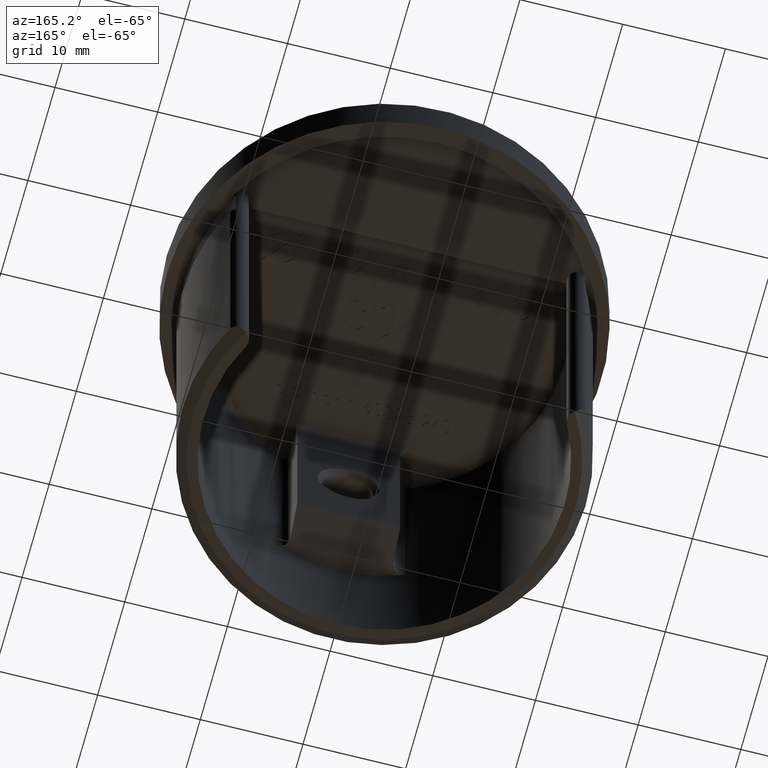
[diagram: clean part render]
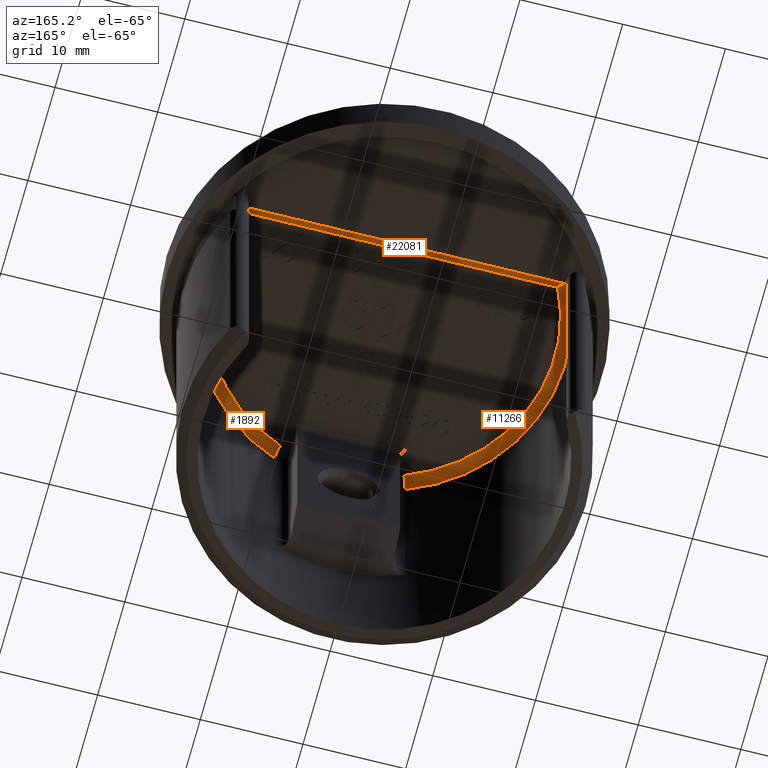
[diagram: same view with one multi-face feature highlighted, each face labeled with its STEP entity id]
A machine part, auxiliary view. The highlighted faces form ONE feature: a constant-radius fillet chain: 3 tangent blend faces with common blend radius 1 mm. The faces share edges in the B-rep.
Their STEP definitions:
[1] entity #22081 (Cylinder):
#217 = ORIENTED_EDGE ( 'NONE', *, *, #7104, .T. ) ;
#1024 = CARTESIAN_POINT ( 'NONE',  ( 15.59207656721033300, 8.082403439311900000, 1.280653125799780200 ) ) ;
#1078 = DIRECTION ( 'NONE',  ( -1.000000000000000000, 0.0000000000000000000, 0.0000000000000000000 ) ) ;
#1366 = VERTEX_POINT ( 'NONE', #21940 ) ;
#1510 = VECTOR ( 'NONE', #1078, 1000.000000000000000 ) ;
#2337 = CARTESIAN_POINT ( 'NONE',  ( 0.0000000000000000000, 7.120000000000001900, 2.000000000000000000 ) ) ;
#3184 = CARTESIAN_POINT ( 'NONE',  ( -15.59207647108406300, 8.082403281173126800, 1.280653705905780800 ) ) ;
#3281 = CARTESIAN_POINT ( 'NONE',  ( 15.29983064122023300, 7.605513222634474600, 1.912203235825041600 ) ) ;
#3361 = CARTESIAN_POINT ( 'NONE',  ( 15.57837762386286700, 8.059870797539284500, 1.348432885515038700 ) ) ;
#3916 = EDGE_LOOP ( 'NONE', ( #20155, #5581, #23730, #217 ) ) ;
#4331 = CARTESIAN_POINT ( 'NONE',  ( -14.99551933078677900, 7.120000000000001900, 2.000000000000000000 ) ) ;
#5046 = CARTESIAN_POINT ( 'NONE',  ( 15.61491711629740900, 8.120000000000002800, 1.000000000000000000 ) ) ;
#5113 = CARTESIAN_POINT ( 'NONE',  ( -15.61491711629741300, 8.120000000000004500, 1.072107598190528600 ) ) ;
#5135 = CARTESIAN_POINT ( 'NONE',  ( 14.99551933078677900, 7.120000000000001900, 2.000000000000000000 ) ) ;
#5581 = ORIENTED_EDGE ( 'NONE', *, *, #23579, .T. ) ;
#6080 = EDGE_CURVE ( 'NONE', #1366, #6849, #18207, .T. ) ;
#6590 = LINE ( 'NONE', #2337, #20392 ) ;
#6849 = VERTEX_POINT ( 'NONE', #17449 ) ;
#7052 = CARTESIAN_POINT ( 'NONE',  ( -15.47659444961398900, 7.892990717075751800, 1.647645641863663100 ) ) ;
#7104 = EDGE_CURVE ( 'NONE', #1366, #20313, #21992, .T. ) ;
#7887 = DIRECTION ( 'NONE',  ( 1.000000000000000000, -0.0000000000000000000, 0.0000000000000000000 ) ) ;
#8755 = CARTESIAN_POINT ( 'NONE',  ( -15.29982946836678400, 7.605511324516868400, 1.912204394972408600 ) ) ;
#8853 = CARTESIAN_POINT ( 'NONE',  ( 15.14727939926857500, 7.360083421147961300, 2.000000000000000900 ) ) ;
#9063 = CARTESIAN_POINT ( 'NONE',  ( -15.14719719005901800, 7.359953366724045800, 2.000000000000000000 ) ) ;
#10103 = CARTESIAN_POINT ( 'NONE',  ( 15.61491711629740900, 8.120000000000002800, 1.000000000000000000 ) ) ;
#10747 = CARTESIAN_POINT ( 'NONE',  ( -15.52649631686719400, 7.974709471884300300, 1.537142589483914600 ) ) ;
#10847 = CARTESIAN_POINT ( 'NONE',  ( 15.61023898915715500, 8.112293187247161100, 1.142621132948190800 ) ) ;
#12506 = CARTESIAN_POINT ( 'NONE',  ( -15.61491711629740900, 8.120000000000002800, 1.000000000000000000 ) ) ;
#13594 = FACE_OUTER_BOUND ( 'NONE', #3916, .T. ) ;
#13906 = CARTESIAN_POINT ( 'NONE',  ( 15.52649667393336200, 7.974710057191403600, 1.537141587700111600 ) ) ;
#14156 = EDGE_CURVE ( 'NONE', #21284, #20313, #6590, .T. ) ;
#14511 = CARTESIAN_POINT ( 'NONE',  ( -15.57837747170429100, 8.059870547374211800, 1.348433587459995300 ) ) ;
#17131 = DIRECTION ( 'NONE',  ( 0.0000000000000000000, 0.0000000000000000000, -1.000000000000000000 ) ) ;
#17234 = DIRECTION ( 'NONE',  ( 1.000000000000000000, -0.0000000000000000000, 0.0000000000000000000 ) ) ;
#17449 = CARTESIAN_POINT ( 'NONE',  ( -15.61491711629740900, 8.120000000000002800, 1.000000000000000000 ) ) ;
#18094 = B_SPLINE_CURVE_WITH_KNOTS ( 'NONE', 3,
 ( #19909, #9063, #8755, #7052, #10747, #14511, #3184, #21594, #5113, #12506 ),
 .UNSPECIFIED., .F., .F.,
 ( 4, 2, 2, 2, 4 ),
 ( -6.654332719826122800E-006, 0.0008449617908909346400, 0.001270769852696315000, 0.001483673883599005200, 0.001696577914501695400 ),
 .UNSPECIFIED. ) ;
#18207 = LINE ( 'NONE', #10103, #1510 ) ;
#18774 = CYLINDRICAL_SURFACE ( 'NONE', #20351, 1.000000000000000000 ) ;
#18907 = CARTESIAN_POINT ( 'NONE',  ( 0.0000000000000000000, 7.120000000000001900, 1.000000000000000000 ) ) ;
#19909 = CARTESIAN_POINT ( 'NONE',  ( -14.99551933078677900, 7.120000000000001900, 2.000000000000000000 ) ) ;
#20155 = ORIENTED_EDGE ( 'NONE', *, *, #14156, .F. ) ;
#20313 = VERTEX_POINT ( 'NONE', #22647 ) ;
#20351 = AXIS2_PLACEMENT_3D ( 'NONE', #18907, #7887, #17131 ) ;
#20392 = VECTOR ( 'NONE', #17234, 1000.000000000000000 ) ;
#21284 = VERTEX_POINT ( 'NONE', #4331 ) ;
#21594 = CARTESIAN_POINT ( 'NONE',  ( -15.61023896951527200, 8.112293154867229500, 1.142621432663860400 ) ) ;
#21608 = CARTESIAN_POINT ( 'NONE',  ( 15.47659498989145600, 7.892991600417474300, 1.647644535130719600 ) ) ;
#21940 = CARTESIAN_POINT ( 'NONE',  ( 15.61491711629740900, 8.120000000000002800, 1.000000000000000000 ) ) ;
#21992 = B_SPLINE_CURVE_WITH_KNOTS ( 'NONE', 3,
 ( #5046, #23072, #10847, #1024, #3361, #13906, #21608, #3281, #8853, #5135 ),
 .UNSPECIFIED., .F., .F.,
 ( 4, 2, 2, 2, 4 ),
 ( 0.0000000000000000000, 0.0002130194246205040400, 0.0004260388492410080900, 0.0008520776984820140000, 0.001704155396964024300 ),
 .UNSPECIFIED. ) ;
#22081 = ADVANCED_FACE ( 'NONE', ( #13594 ), #18774, .F. ) ;
#22647 = CARTESIAN_POINT ( 'NONE',  ( 14.99551933078677900, 7.120000000000001900, 2.000000000000000000 ) ) ;
#23072 = CARTESIAN_POINT ( 'NONE',  ( 15.61491711629740900, 8.120000000000004500, 1.072107444985236100 ) ) ;
#23579 = EDGE_CURVE ( 'NONE', #21284, #6849, #18094, .T. ) ;
#23730 = ORIENTED_EDGE ( 'NONE', *, *, #6080, .F. ) ;
[2] entity #11266 (Torus):
#281 = DIRECTION ( 'NONE',  ( -1.000000000000000000, 0.0000000000000000000, 0.0000000000000000000 ) ) ;
#433 = CARTESIAN_POINT ( 'NONE',  ( 0.0000000000000000000, 0.0000000000000000000, 2.000000000000000000 ) ) ;
#526 = CARTESIAN_POINT ( 'NONE',  ( -5.999999999999998200, -15.47772593115668200, 2.000000000000000000 ) ) ;
#646 = CIRCLE ( 'NONE', #7582, 16.60000000000000100 ) ;
#1831 = CARTESIAN_POINT ( 'NONE',  ( -15.61557046979866000, 8.118741214175512900, 1.000000000000000900 ) ) ;
#2671 = EDGE_CURVE ( 'NONE', #6849, #18271, #6669, .T. ) ;
#3184 = CARTESIAN_POINT ( 'NONE',  ( -15.59207647108406300, 8.082403281173126800, 1.280653705905780800 ) ) ;
#4115 = EDGE_CURVE ( 'NONE', #18271, #20037, #12734, .T. ) ;
#4331 = CARTESIAN_POINT ( 'NONE',  ( -14.99551933078677900, 7.120000000000001900, 2.000000000000000000 ) ) ;
#4405 = CARTESIAN_POINT ( 'NONE',  ( -6.361445783132529300, -16.41011905953961800, 1.000000000000000900 ) ) ;
#5113 = CARTESIAN_POINT ( 'NONE',  ( -15.61491711629741300, 8.120000000000004500, 1.072107598190528600 ) ) ;
#5904 = DIRECTION ( 'NONE',  ( -1.000000000000000000, 0.0000000000000000000, 0.0000000000000000000 ) ) ;
#6645 = EDGE_LOOP ( 'NONE', ( #17173, #8864, #21699, #15979, #21697 ) ) ;
#6669 = B_SPLINE_CURVE_WITH_KNOTS ( 'NONE', 3,
 ( #19320, #13861, #12558, #15634 ),
 .UNSPECIFIED., .F., .F.,
 ( 4, 4 ),
 ( 0.0000000000000000000, 1.000000000000000000 ),
 .UNSPECIFIED. ) ;
#6849 = VERTEX_POINT ( 'NONE', #17449 ) ;
#7052 = CARTESIAN_POINT ( 'NONE',  ( -15.47659444961398900, 7.892990717075751800, 1.647645641863663100 ) ) ;
#7582 = AXIS2_PLACEMENT_3D ( 'NONE', #433, #20777, #5904 ) ;
#7960 = DIRECTION ( 'NONE',  ( -0.0000000000000000000, -0.0000000000000000000, 1.000000000000000000 ) ) ;
#8340 = DIRECTION ( 'NONE',  ( -0.9323931283829327600, 0.3614457831325302900, 1.817136390298432100E-016 ) ) ;
#8755 = CARTESIAN_POINT ( 'NONE',  ( -15.29982946836678400, 7.605511324516868400, 1.912204394972408600 ) ) ;
#8864 = ORIENTED_EDGE ( 'NONE', *, *, #4115, .F. ) ;
#9063 = CARTESIAN_POINT ( 'NONE',  ( -15.14719719005901800, 7.359953366724045800, 2.000000000000000000 ) ) ;
#10747 = CARTESIAN_POINT ( 'NONE',  ( -15.52649631686719400, 7.974709471884300300, 1.537142589483914600 ) ) ;
#11266 = ADVANCED_FACE ( 'NONE', ( #19299 ), #19589, .F. ) ;
#11648 = DIRECTION ( 'NONE',  ( -1.000000000000000000, 0.0000000000000000000, 0.0000000000000000000 ) ) ;
#11841 = AXIS2_PLACEMENT_3D ( 'NONE', #19277, #8340, #21108 ) ;
#12506 = CARTESIAN_POINT ( 'NONE',  ( -15.61491711629740900, 8.120000000000002800, 1.000000000000000000 ) ) ;
#12558 = CARTESIAN_POINT ( 'NONE',  ( -15.61535268529824400, 8.119160809450342200, 1.000000000000000700 ) ) ;
#12734 = CIRCLE ( 'NONE', #23464, 17.60000000000000100 ) ;
#13494 = CARTESIAN_POINT ( 'NONE',  ( 0.0000000000000000000, 0.0000000000000000000, 1.000000000000000900 ) ) ;
#13861 = CARTESIAN_POINT ( 'NONE',  ( -15.61513490079782700, 8.119580404725173400, 1.000000000000000200 ) ) ;
#14511 = CARTESIAN_POINT ( 'NONE',  ( -15.57837747170429100, 8.059870547374211800, 1.348433587459995300 ) ) ;
#14996 = DIRECTION ( 'NONE',  ( 0.0000000000000000000, 0.0000000000000000000, -1.000000000000000000 ) ) ;
#15066 = EDGE_CURVE ( 'NONE', #20037, #20401, #21524, .T. ) ;
#15634 = CARTESIAN_POINT ( 'NONE',  ( -15.61557046979866000, 8.118741214175512900, 1.000000000000000900 ) ) ;
#15979 = ORIENTED_EDGE ( 'NONE', *, *, #23579, .F. ) ;
#17173 = ORIENTED_EDGE ( 'NONE', *, *, #15066, .F. ) ;
#17449 = CARTESIAN_POINT ( 'NONE',  ( -15.61491711629740900, 8.120000000000002800, 1.000000000000000000 ) ) ;
#18094 = B_SPLINE_CURVE_WITH_KNOTS ( 'NONE', 3,
 ( #19909, #9063, #8755, #7052, #10747, #14511, #3184, #21594, #5113, #12506 ),
 .UNSPECIFIED., .F., .F.,
 ( 4, 2, 2, 2, 4 ),
 ( -6.654332719826122800E-006, 0.0008449617908909346400, 0.001270769852696315000, 0.001483673883599005200, 0.001696577914501695400 ),
 .UNSPECIFIED. ) ;
#18271 = VERTEX_POINT ( 'NONE', #1831 ) ;
#18750 = AXIS2_PLACEMENT_3D ( 'NONE', #22555, #14996, #281 ) ;
#19277 = CARTESIAN_POINT ( 'NONE',  ( -5.999999999999999100, -15.47772593115668400, 1.000000000000000900 ) ) ;
#19299 = FACE_OUTER_BOUND ( 'NONE', #6645, .T. ) ;
#19320 = CARTESIAN_POINT ( 'NONE',  ( -15.61491711629740900, 8.120000000000002800, 1.000000000000000000 ) ) ;
#19589 = TOROIDAL_SURFACE ( 'NONE', #18750, 16.60000000000000100, 1.000000000000000000 ) ;
#19909 = CARTESIAN_POINT ( 'NONE',  ( -14.99551933078677900, 7.120000000000001900, 2.000000000000000000 ) ) ;
#20037 = VERTEX_POINT ( 'NONE', #4405 ) ;
#20401 = VERTEX_POINT ( 'NONE', #526 ) ;
#20777 = DIRECTION ( 'NONE',  ( 0.0000000000000000000, 0.0000000000000000000, -1.000000000000000000 ) ) ;
#21108 = DIRECTION ( 'NONE',  ( -0.3614457831325302900, -0.9323931283829326500, 0.0000000000000000000 ) ) ;
#21284 = VERTEX_POINT ( 'NONE', #4331 ) ;
#21524 = CIRCLE ( 'NONE', #11841, 1.000000000000000200 ) ;
#21594 = CARTESIAN_POINT ( 'NONE',  ( -15.61023896951527200, 8.112293154867229500, 1.142621432663860400 ) ) ;
#21672 = EDGE_CURVE ( 'NONE', #20401, #21284, #646, .T. ) ;
#21697 = ORIENTED_EDGE ( 'NONE', *, *, #21672, .F. ) ;
#21699 = ORIENTED_EDGE ( 'NONE', *, *, #2671, .F. ) ;
#22555 = CARTESIAN_POINT ( 'NONE',  ( 0.0000000000000000000, 0.0000000000000000000, 1.000000000000000900 ) ) ;
#23464 = AXIS2_PLACEMENT_3D ( 'NONE', #13494, #7960, #11648 ) ;
#23579 = EDGE_CURVE ( 'NONE', #21284, #6849, #18094, .T. ) ;
[3] entity #1892 (Torus):
#178 = ORIENTED_EDGE ( 'NONE', *, *, #10977, .F. ) ;
#997 = TOROIDAL_SURFACE ( 'NONE', #5561, 16.60000000000000100, 1.000000000000000000 ) ;
#1024 = CARTESIAN_POINT ( 'NONE',  ( 15.59207656721033300, 8.082403439311900000, 1.280653125799780200 ) ) ;
#1366 = VERTEX_POINT ( 'NONE', #21940 ) ;
#1866 = AXIS2_PLACEMENT_3D ( 'NONE', #9815, #15117, #22517 ) ;
#1892 = ADVANCED_FACE ( 'NONE', ( #23159 ), #997, .F. ) ;
#2049 = DIRECTION ( 'NONE',  ( 0.0000000000000000000, 0.0000000000000000000, -1.000000000000000000 ) ) ;
#2600 = CIRCLE ( 'NONE', #10437, 1.000000000000000200 ) ;
#2612 = VERTEX_POINT ( 'NONE', #17489 ) ;
#2881 = CARTESIAN_POINT ( 'NONE',  ( 5.999999999999998200, -15.47772593115668200, 1.000000000000000000 ) ) ;
#3281 = CARTESIAN_POINT ( 'NONE',  ( 15.29983064122023300, 7.605513222634474600, 1.912203235825041600 ) ) ;
#3361 = CARTESIAN_POINT ( 'NONE',  ( 15.57837762386286700, 8.059870797539284500, 1.348432885515038700 ) ) ;
#3709 = CARTESIAN_POINT ( 'NONE',  ( 5.999999999999998200, -15.47772593115668200, 2.000000000000000000 ) ) ;
#3871 = ORIENTED_EDGE ( 'NONE', *, *, #8876, .F. ) ;
#5046 = CARTESIAN_POINT ( 'NONE',  ( 15.61491711629740900, 8.120000000000002800, 1.000000000000000000 ) ) ;
#5135 = CARTESIAN_POINT ( 'NONE',  ( 14.99551933078677900, 7.120000000000001900, 2.000000000000000000 ) ) ;
#5338 = CARTESIAN_POINT ( 'NONE',  ( 6.361445783132529300, -16.41011905953961800, 1.000000000000000900 ) ) ;
#5561 = AXIS2_PLACEMENT_3D ( 'NONE', #20540, #2049, #20861 ) ;
#6299 = VERTEX_POINT ( 'NONE', #5338 ) ;
#6878 = CARTESIAN_POINT ( 'NONE',  ( 15.61535268529824400, 8.119160809450345800, 1.000000000000000200 ) ) ;
#7104 = EDGE_CURVE ( 'NONE', #1366, #20313, #21992, .T. ) ;
#8388 = EDGE_CURVE ( 'NONE', #6299, #2612, #10956, .T. ) ;
#8726 = ORIENTED_EDGE ( 'NONE', *, *, #7104, .F. ) ;
#8853 = CARTESIAN_POINT ( 'NONE',  ( 15.14727939926857500, 7.360083421147961300, 2.000000000000000900 ) ) ;
#8876 = EDGE_CURVE ( 'NONE', #2612, #1366, #13924, .T. ) ;
#9067 = DIRECTION ( 'NONE',  ( -0.0000000000000000000, -0.0000000000000000000, 1.000000000000000000 ) ) ;
#9290 = CARTESIAN_POINT ( 'NONE',  ( 15.61513490079782700, 8.119580404725173400, 0.9999999999999997800 ) ) ;
#9815 = CARTESIAN_POINT ( 'NONE',  ( 0.0000000000000000000, 0.0000000000000000000, 2.000000000000000000 ) ) ;
#10437 = AXIS2_PLACEMENT_3D ( 'NONE', #2881, #12201, #17691 ) ;
#10847 = CARTESIAN_POINT ( 'NONE',  ( 15.61023898915715500, 8.112293187247161100, 1.142621132948190800 ) ) ;
#10956 = CIRCLE ( 'NONE', #18570, 17.60000000000000100 ) ;
#10977 = EDGE_CURVE ( 'NONE', #16329, #6299, #2600, .T. ) ;
#12201 = DIRECTION ( 'NONE',  ( 0.9323931283829326500, 0.3614457831325304500, -0.0000000000000000000 ) ) ;
#12537 = ORIENTED_EDGE ( 'NONE', *, *, #8388, .F. ) ;
#12825 = DIRECTION ( 'NONE',  ( -1.000000000000000000, 0.0000000000000000000, 0.0000000000000000000 ) ) ;
#13906 = CARTESIAN_POINT ( 'NONE',  ( 15.52649667393336200, 7.974710057191403600, 1.537141587700111600 ) ) ;
#13924 = B_SPLINE_CURVE_WITH_KNOTS ( 'NONE', 3,
 ( #19975, #6878, #9290, #16529 ),
 .UNSPECIFIED., .F., .F.,
 ( 4, 4 ),
 ( 0.0000000000000000000, 1.000000000000000000 ),
 .UNSPECIFIED. ) ;
#15117 = DIRECTION ( 'NONE',  ( 0.0000000000000000000, 0.0000000000000000000, -1.000000000000000000 ) ) ;
#15592 = ORIENTED_EDGE ( 'NONE', *, *, #22053, .F. ) ;
#16329 = VERTEX_POINT ( 'NONE', #3709 ) ;
#16529 = CARTESIAN_POINT ( 'NONE',  ( 15.61491711629740900, 8.120000000000002800, 1.000000000000000000 ) ) ;
#17489 = CARTESIAN_POINT ( 'NONE',  ( 15.61557046979866000, 8.118741214175516400, 1.000000000000000400 ) ) ;
#17691 = DIRECTION ( 'NONE',  ( -0.3614457831325302900, 0.9323931283829326500, 0.0000000000000000000 ) ) ;
#18496 = CIRCLE ( 'NONE', #1866, 16.60000000000000100 ) ;
#18570 = AXIS2_PLACEMENT_3D ( 'NONE', #22144, #9067, #12825 ) ;
#19487 = EDGE_LOOP ( 'NONE', ( #3871, #12537, #178, #15592, #8726 ) ) ;
#19975 = CARTESIAN_POINT ( 'NONE',  ( 15.61557046979866000, 8.118741214175516400, 1.000000000000000400 ) ) ;
#20313 = VERTEX_POINT ( 'NONE', #22647 ) ;
#20540 = CARTESIAN_POINT ( 'NONE',  ( 0.0000000000000000000, 0.0000000000000000000, 1.000000000000000900 ) ) ;
#20861 = DIRECTION ( 'NONE',  ( -1.000000000000000000, 0.0000000000000000000, 0.0000000000000000000 ) ) ;
#21608 = CARTESIAN_POINT ( 'NONE',  ( 15.47659498989145600, 7.892991600417474300, 1.647644535130719600 ) ) ;
#21940 = CARTESIAN_POINT ( 'NONE',  ( 15.61491711629740900, 8.120000000000002800, 1.000000000000000000 ) ) ;
#21992 = B_SPLINE_CURVE_WITH_KNOTS ( 'NONE', 3,
 ( #5046, #23072, #10847, #1024, #3361, #13906, #21608, #3281, #8853, #5135 ),
 .UNSPECIFIED., .F., .F.,
 ( 4, 2, 2, 2, 4 ),
 ( 0.0000000000000000000, 0.0002130194246205040400, 0.0004260388492410080900, 0.0008520776984820140000, 0.001704155396964024300 ),
 .UNSPECIFIED. ) ;
#22053 = EDGE_CURVE ( 'NONE', #20313, #16329, #18496, .T. ) ;
#22144 = CARTESIAN_POINT ( 'NONE',  ( 0.0000000000000000000, 0.0000000000000000000, 1.000000000000000900 ) ) ;
#22517 = DIRECTION ( 'NONE',  ( -1.000000000000000000, 0.0000000000000000000, 0.0000000000000000000 ) ) ;
#22647 = CARTESIAN_POINT ( 'NONE',  ( 14.99551933078677900, 7.120000000000001900, 2.000000000000000000 ) ) ;
#23072 = CARTESIAN_POINT ( 'NONE',  ( 15.61491711629740900, 8.120000000000004500, 1.072107444985236100 ) ) ;
#23159 = FACE_OUTER_BOUND ( 'NONE', #19487, .T. ) ;